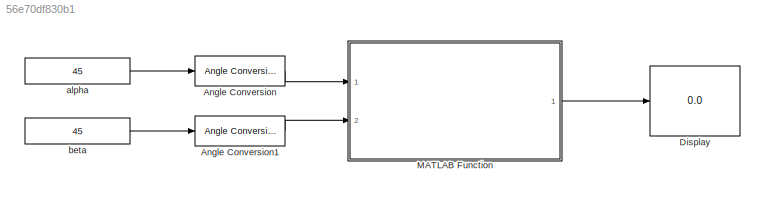
MODEL slx_56e70df830b1
KIND model
CONFIG AbsTol = auto
CONFIG FixedStep = 0.001
CONFIG MaxStep = auto
CONFIG MinStep = auto
CONFIG RelTol = 1e-3
CONFIG SampleTimeConstraint = Unconstrained
CONFIG Solver = ode4
CONFIG SolverMode = Auto
CONFIG SolverName = ode4
CONFIG StartTime = 0.0
CONFIG StopTime = 10.0
BLOCK [Reference] Angle Conversion  REF=aerolibconvert2/Angle Conversion
  Ports = [1, 1]
  SourceBlock = aerolibconvert2/Angle Conversion
  SourceType = Angle Conversion
BLOCK [Reference] Angle Conversion1  REF=aerolibconvert2/Angle Conversion
  Ports = [1, 1]
  SourceBlock = aerolibconvert2/Angle Conversion
  SourceType = Angle Conversion
BLOCK [Display] Display
  Decimation = 1
  Ports = [1]
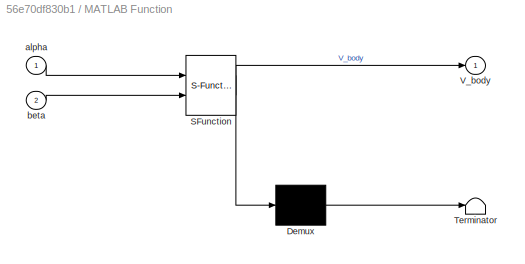
BLOCK [SubSystem] MATLAB Function
  ErrorFcn = Stateflow.Translate.translate
  PermitHierarchicalResolution = ExplicitOnly
  Ports = [2, 1]
  RequestExecContextInheritance = off
  SFBlockType = MATLAB Function
  TreatAsAtomicUnit = on
  Variant = off
BLOCK [Demux] MATLAB Function/ Demux 
  Outputs = 1
  Ports = [1, 1]
BLOCK [S-Function] MATLAB Function/ SFunction 
  EnableBusSupport = on
  FunctionName = sf_sfun
  PortCounts = [2 2]
  Ports = [2, 2]
  SFunctionDeploymentMode = off
  Tag = Stateflow S-Function Check_wind2body_axis_transformation 2
BLOCK [Terminator] MATLAB Function/ Terminator 
BLOCK [Outport] MATLAB Function/V_body
  IconDisplay = Port number
BLOCK [Inport] MATLAB Function/alpha
  IconDisplay = Port number
BLOCK [Inport] MATLAB Function/beta
  IconDisplay = Port number
  Port = 2
BLOCK [Constant] alpha
  Value = 45
BLOCK [Constant] beta
  Value = 45
LINE Angle Conversion1:1 -> MATLAB Function:2
LINE Angle Conversion:1 -> MATLAB Function:1
LINE MATLAB Function:1 -> Display:1
LINE alpha:1 -> Angle Conversion:1
LINE beta:1 -> Angle Conversion1:1
CHART MATLAB Function states=1 transitions=1
  STATE_LABEL 'eML_blk_kernel()'
  STATE_LABEL 'SCRIPT:\nfunction V_body = fcn(alpha,beta)\n\n% According to Cook (page 21): (phi,theta,psi) = (0,alpha,-beta)\nphi = 0;\ntheta = alpha;\npsi = -beta;\n\n% NASA transformation equations\ntheta1 = psi;\ntheta2 = theta;\ntheta3 = phi;\n\nq0 = +sin(theta1/2)*sin(theta2/2)*sin(theta3/2)+cos(theta1/2)*cos(theta2/2)*cos(theta3/2);\nq1 = -sin(theta1/2)*sin(theta2/2)*cos(theta3/2)+sin(theta3/2)*cos(theta1/2)*cos(theta2...<+550ch>'
